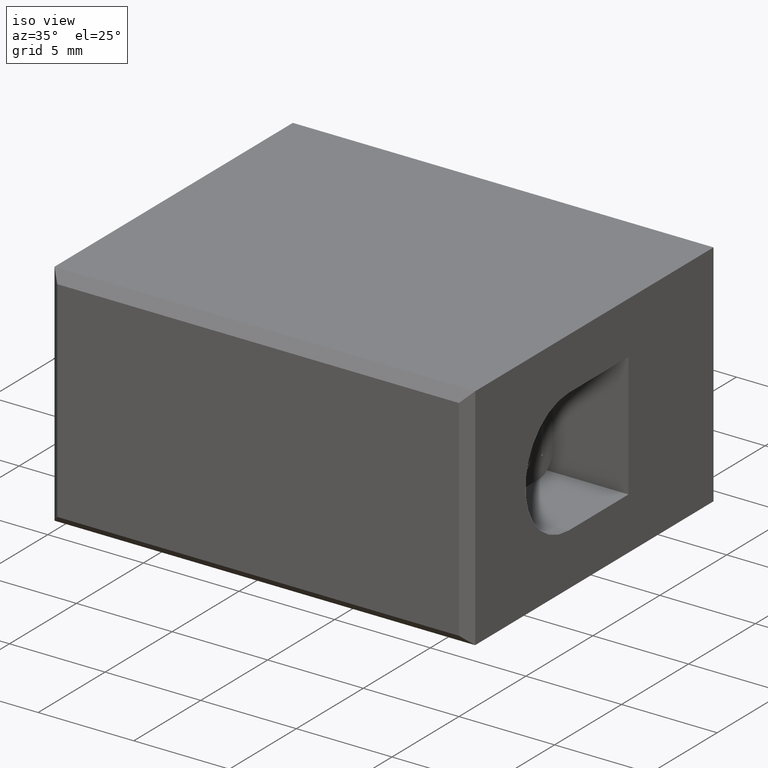
[diagram: clean part render]
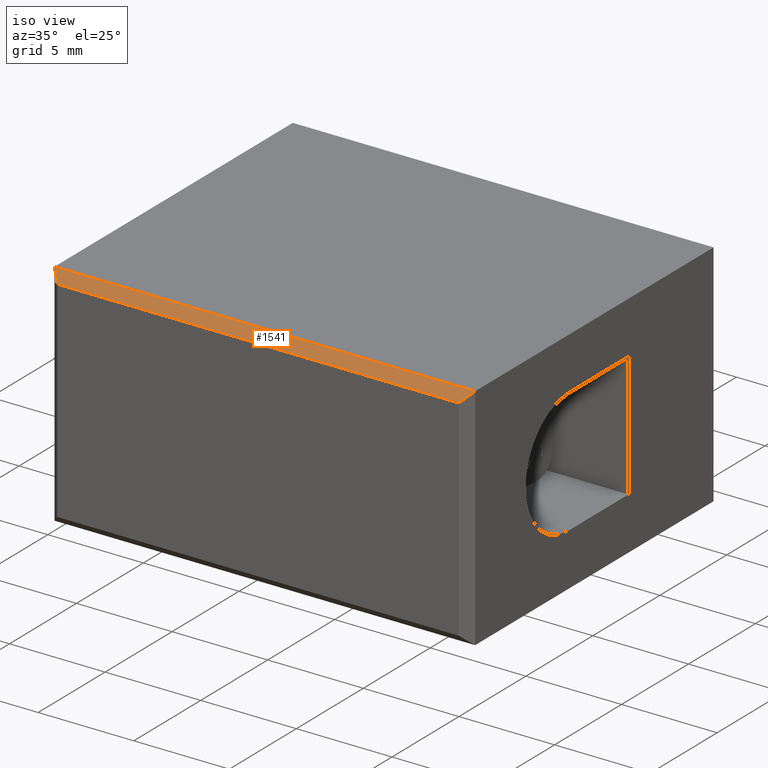
[diagram: same view with one face highlighted and labeled with its STEP entity id]
A machine part, iso view. The second image highlights one B-rep face of the part: STEP entity #1541.
In plain terms, the highlighted planar face has unit normal (0, -0.7071, 0.7071).
Its self-contained STEP definition (entity closure, byte-faithful):
#9 = CARTESIAN_POINT ( 'NONE',  ( 22.00000000000000700, 0.5000000000000028900, -2.439454888092444600E-016 ) ) ;
#45 = CARTESIAN_POINT ( 'NONE',  ( 21.50000000000000400, 3.788869437670809000E-015, -0.5000000000000030000 ) ) ;
#46 = CARTESIAN_POINT ( 'NONE',  ( 0.5000000000000035500, 2.998409307975643500E-016, -0.5000000000000036600 ) ) ;
#219 = EDGE_LOOP ( 'NONE', ( #693, #773, #756, #706 ) ) ;
#303 = VERTEX_POINT ( 'NONE', #813 ) ;
#310 = VERTEX_POINT ( 'NONE', #46 ) ;
#338 = VERTEX_POINT ( 'NONE', #45 ) ;
#349 = VERTEX_POINT ( 'NONE', #9 ) ;
#693 = ORIENTED_EDGE ( 'NONE', *, *, #1381, .T. ) ;
#706 = ORIENTED_EDGE ( 'NONE', *, *, #1397, .T. ) ;
#756 = ORIENTED_EDGE ( 'NONE', *, *, #1443, .T. ) ;
#773 = ORIENTED_EDGE ( 'NONE', *, *, #1416, .T. ) ;
#813 = CARTESIAN_POINT ( 'NONE',  ( -1.253608761936378300E-016, 0.5000000000000005600, 2.600391148070713900E-016 ) ) ;
#901 = VECTOR ( 'NONE', #2105, 1000.000000000000000 ) ;
#906 = VECTOR ( 'NONE', #2044, 1000.000000000000000 ) ;
#955 = VECTOR ( 'NONE', #2182, 1000.000000000000000 ) ;
#1033 = AXIS2_PLACEMENT_3D ( 'NONE', #2598, #2609, #2663 ) ;
#1248 = VECTOR ( 'NONE', #1993, 1000.000000000000000 ) ;
#1381 = EDGE_CURVE ( 'NONE', #303, #310, #1986, .T. ) ;
#1397 = EDGE_CURVE ( 'NONE', #349, #303, #2055, .T. ) ;
#1416 = EDGE_CURVE ( 'NONE', #310, #338, #2108, .T. ) ;
#1443 = EDGE_CURVE ( 'NONE', #338, #349, #2137, .T. ) ;
#1541 = ADVANCED_FACE ( 'NONE', ( #2567 ), #2568, .T. ) ;
#1978 = CARTESIAN_POINT ( 'NONE',  ( 2.710505431213762300E-017, 0.5000000000000004400, -1.355252715606899800E-017 ) ) ;
#1986 = LINE ( 'NONE', #1978, #1248 ) ;
#1993 = DIRECTION ( 'NONE',  ( 0.5773502691896271700, -0.5773502691896230700, -0.5773502691896270600 ) ) ;
#2033 = CARTESIAN_POINT ( 'NONE',  ( 0.0000000000000000000, 0.5000000000000004400, 0.0000000000000000000 ) ) ;
#2044 = DIRECTION ( 'NONE',  ( -1.000000000000000000, 0.0000000000000000000, -0.0000000000000000000 ) ) ;
#2055 = LINE ( 'NONE', #2033, #906 ) ;
#2105 = DIRECTION ( 'NONE',  ( 1.000000000000000000, 0.0000000000000000000, 0.0000000000000000000 ) ) ;
#2108 = LINE ( 'NONE', #2128, #901 ) ;
#2128 = CARTESIAN_POINT ( 'NONE',  ( 0.0000000000000000000, -1.084202172485504400E-016, -0.5000000000000040000 ) ) ;
#2137 = LINE ( 'NONE', #2216, #955 ) ;
#2182 = DIRECTION ( 'NONE',  ( 0.5773502691896270600, 0.5773502691896231800, 0.5773502691896271700 ) ) ;
#2216 = CARTESIAN_POINT ( 'NONE',  ( 21.50000000000001100, 7.589415207398531000E-016, -0.5000000000000031100 ) ) ;
#2567 = FACE_OUTER_BOUND ( 'NONE', #219, .T. ) ;
#2568 = PLANE ( 'NONE',  #1033 ) ;
#2598 = CARTESIAN_POINT ( 'NONE',  ( 0.0000000000000000000, 0.5000000000000004400, 0.0000000000000000000 ) ) ;
#2609 = DIRECTION ( 'NONE',  ( 0.0000000000000000000, -0.7071067811865500200, 0.7071067811865451300 ) ) ;
#2663 = DIRECTION ( 'NONE',  ( 0.0000000000000000000, -0.7071067811865451300, -0.7071067811865500200 ) ) ;